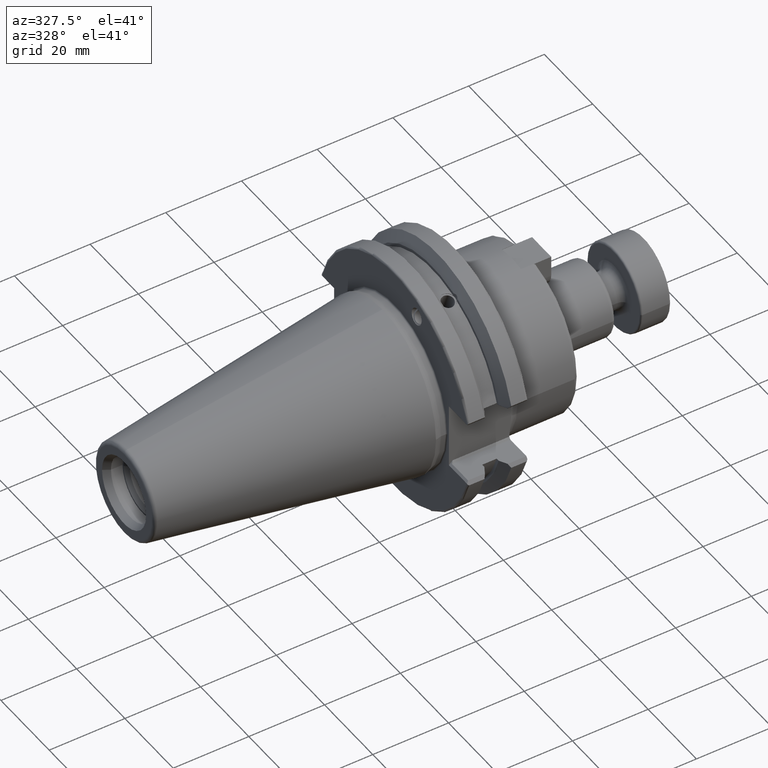
[diagram: clean part render]
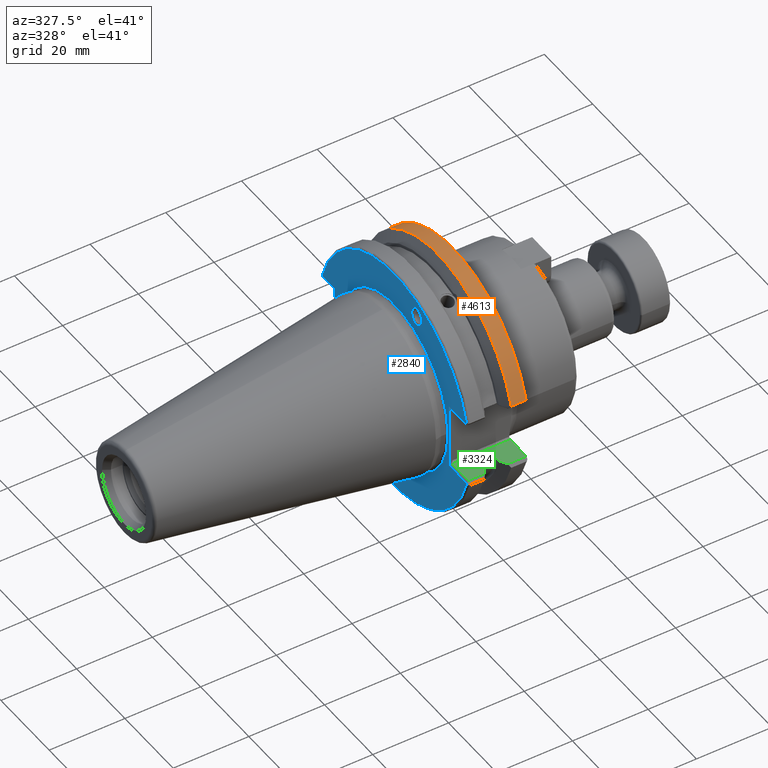
[diagram: same view with three faces highlighted in distinct colors, each labeled with its STEP entity id]
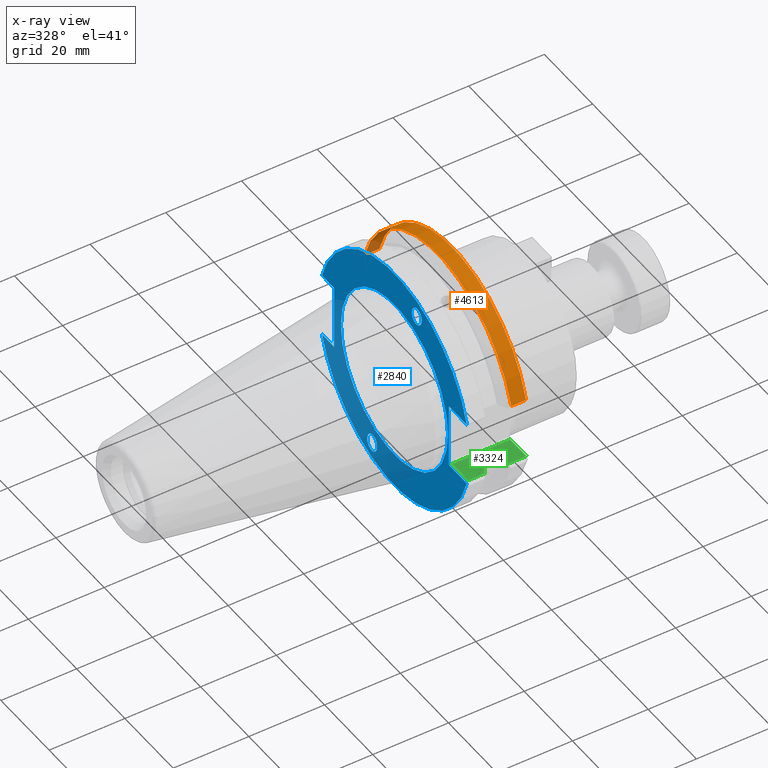
[diagram: x-ray of the same camera — body ghosted, the three highlighted faces saturated]
A machine part, auxiliary view with three faces highlighted in distinct colors.
The next image is the same camera in x-ray (body ghosted, the three faces saturated) — at least one of them is partly hidden behind the body in this view.
Their STEP definitions:

[orange] entity #4613 — the highlighted cylindrical surface (partial cylindrical patch) has radius 31.75 mm, axis along (1, 0, 0).
#1479=CARTESIAN_POINT('',(5.771735840551E-1,1.197670401482E0,
3.578904991948E-1));
#1485=CARTESIAN_POINT('',(5.771735840551E-1,0.E0,0.E0));
#1486=DIRECTION('',(1.E0,0.E0,0.E0));
#1487=DIRECTION('',(0.E0,9.581363211856E-1,2.863123993559E-1));
#1488=AXIS2_PLACEMENT_3D('',#1485,#1486,#1487);
#1494=CARTESIAN_POINT('',(5.771735840551E-1,-1.197670401482E0,
3.578904991948E-1));
#1653=DIRECTION('',(1.E0,0.E0,0.E0));
#1654=VECTOR('',#1653,1.541256285433E-1);
#1655=CARTESIAN_POINT('',(5.771735840551E-1,-1.197670401482E0,
3.578904991948E-1));
#1656=LINE('',#1655,#1654);
#1657=DIRECTION('',(-1.E0,0.E0,0.E0));
#1658=VECTOR('',#1657,1.541256285433E-1);
#1659=CARTESIAN_POINT('',(7.312992125984E-1,1.197670401482E0,
3.578904991948E-1));
#1660=LINE('',#1659,#1658);
#1762=CARTESIAN_POINT('',(7.312992125984E-1,0.E0,0.E0));
#1763=DIRECTION('',(-1.E0,0.E0,0.E0));
#1764=DIRECTION('',(0.E0,-9.581363211856E-1,2.863123993559E-1));
#1765=AXIS2_PLACEMENT_3D('',#1762,#1763,#1764);
#2226=VERTEX_POINT('',#1479);
#2237=VERTEX_POINT('',#1494);
#2290=CARTESIAN_POINT('',(7.312992125984E-1,1.197670401482E0,
3.578904991948E-1));
#2291=VERTEX_POINT('',#2290);
#2294=CARTESIAN_POINT('',(7.312992125984E-1,-1.197670401482E0,
3.578904991948E-1));
#2295=VERTEX_POINT('',#2294);
#4601=CARTESIAN_POINT('',(0.E0,0.E0,0.E0));
#4602=DIRECTION('',(1.E0,0.E0,0.E0));
#4603=DIRECTION('',(0.E0,0.E0,1.E0));
#4604=AXIS2_PLACEMENT_3D('',#4601,#4602,#4603);
#4605=CYLINDRICAL_SURFACE('',#4604,1.25E0);
#4607=ORIENTED_EDGE('',*,*,#4606,.F.);
#4608=ORIENTED_EDGE('',*,*,#4333,.F.);
#4609=ORIENTED_EDGE('',*,*,#4374,.F.);
#4610=ORIENTED_EDGE('',*,*,#4302,.F.);
#4611=EDGE_LOOP('',(#4607,#4608,#4609,#4610));
#4612=FACE_OUTER_BOUND('',#4611,.F.);
#4613=ADVANCED_FACE('',(#4612),#4605,.T.);
#1489=CIRCLE('',#1488,1.25E0);
#1766=CIRCLE('',#1765,1.25E0);
#4302=EDGE_CURVE('',#2291,#2226,#1660,.T.);
#4333=EDGE_CURVE('',#2237,#2295,#1656,.T.);
#4374=EDGE_CURVE('',#2226,#2237,#1489,.T.);
#4606=EDGE_CURVE('',#2295,#2291,#1766,.T.);

[blue] entity #2840 — the highlighted planar face has unit normal (1, 0, 0).
#116=CARTESIAN_POINT('',(1.25E-1,0.E0,0.E0));
#117=DIRECTION('',(1.E0,0.E0,0.E0));
#118=DIRECTION('',(0.E0,1.E0,0.E0));
#119=AXIS2_PLACEMENT_3D('',#116,#117,#118);
#121=CARTESIAN_POINT('',(1.25E-1,0.E0,0.E0));
#122=DIRECTION('',(1.E0,0.E0,0.E0));
#123=DIRECTION('',(0.E0,-1.E0,0.E0));
#124=AXIS2_PLACEMENT_3D('',#121,#122,#123);
#126=CARTESIAN_POINT('',(1.25E-1,3.739298246450E-1,-1.093142051325E0));
#127=CARTESIAN_POINT('',(1.25E-1,3.644663224218E-1,-1.093142051325E0));
#128=CARTESIAN_POINT('',(1.25E-1,3.435773970481E-1,-1.089097688269E0));
#129=CARTESIAN_POINT('',(1.25E-1,3.126429753245E-1,-1.067589996681E0));
#130=CARTESIAN_POINT('',(1.25E-1,2.905283550519E-1,-1.033752631611E0));
#131=CARTESIAN_POINT('',(1.25E-1,2.815492863552E-1,-9.988858567409E-1));
#132=CARTESIAN_POINT('',(1.25E-1,2.828599403287E-1,-9.640190818709E-1));
#133=CARTESIAN_POINT('',(1.25E-1,2.975325488447E-1,-9.301817168011E-1));
#134=CARTESIAN_POINT('',(1.25E-1,3.237366822222E-1,-9.086740252131E-1));
#135=CARTESIAN_POINT('',(1.25E-1,3.437361116982E-1,-9.046296621564E-1));
#136=CARTESIAN_POINT('',(1.25E-1,3.531996139214E-1,-9.046296621564E-1));
#138=CARTESIAN_POINT('',(1.25E-1,3.531996139214E-1,-9.046296621564E-1));
#139=CARTESIAN_POINT('',(1.25E-1,3.626631161446E-1,-9.046296621564E-1));
#140=CARTESIAN_POINT('',(1.25E-1,3.835520415183E-1,-9.086740252131E-1));
#141=CARTESIAN_POINT('',(1.25E-1,4.144864632419E-1,-9.301817168011E-1));
#142=CARTESIAN_POINT('',(1.25E-1,4.366010835145E-1,-9.640190818709E-1));
#143=CARTESIAN_POINT('',(1.25E-1,4.455801522112E-1,-9.988858567409E-1));
#144=CARTESIAN_POINT('',(1.25E-1,4.442694982377E-1,-1.033752631611E0));
#145=CARTESIAN_POINT('',(1.25E-1,4.295968897217E-1,-1.067589996681E0));
#146=CARTESIAN_POINT('',(1.25E-1,4.033927563442E-1,-1.089097688269E0));
#147=CARTESIAN_POINT('',(1.25E-1,3.833933268682E-1,-1.093142051325E0));
#148=CARTESIAN_POINT('',(1.25E-1,3.739298246450E-1,-1.093142051325E0));
#150=CARTESIAN_POINT('',(1.25E-1,-3.739298246450E-1,1.093142051325E0));
#151=CARTESIAN_POINT('',(1.25E-1,-3.644663224218E-1,1.093142051325E0));
#152=CARTESIAN_POINT('',(1.25E-1,-3.435773970481E-1,1.089097688269E0));
#153=CARTESIAN_POINT('',(1.25E-1,-3.126429753245E-1,1.067589996681E0));
#154=CARTESIAN_POINT('',(1.25E-1,-2.905283550519E-1,1.033752631611E0));
#155=CARTESIAN_POINT('',(1.25E-1,-2.815492863552E-1,9.988858567409E-1));
#156=CARTESIAN_POINT('',(1.25E-1,-2.828599403287E-1,9.640190818709E-1));
#157=CARTESIAN_POINT('',(1.25E-1,-2.975325488447E-1,9.301817168011E-1));
#158=CARTESIAN_POINT('',(1.25E-1,-3.237366822222E-1,9.086740252131E-1));
#159=CARTESIAN_POINT('',(1.25E-1,-3.437361116982E-1,9.046296621564E-1));
#160=CARTESIAN_POINT('',(1.25E-1,-3.531996139214E-1,9.046296621564E-1));
#162=CARTESIAN_POINT('',(1.25E-1,-3.531996139214E-1,9.046296621564E-1));
#163=CARTESIAN_POINT('',(1.25E-1,-3.626631161446E-1,9.046296621564E-1));
#164=CARTESIAN_POINT('',(1.25E-1,-3.835520415183E-1,9.086740252131E-1));
#165=CARTESIAN_POINT('',(1.25E-1,-4.144864632419E-1,9.301817168011E-1));
#166=CARTESIAN_POINT('',(1.25E-1,-4.366010835145E-1,9.640190818709E-1));
#167=CARTESIAN_POINT('',(1.25E-1,-4.455801522112E-1,9.988858567409E-1));
#168=CARTESIAN_POINT('',(1.25E-1,-4.442694982377E-1,1.033752631611E0));
#169=CARTESIAN_POINT('',(1.25E-1,-4.295968897217E-1,1.067589996681E0));
#170=CARTESIAN_POINT('',(1.25E-1,-4.033927563442E-1,1.089097688269E0));
#171=CARTESIAN_POINT('',(1.25E-1,-3.833933268682E-1,1.093142051325E0));
#172=CARTESIAN_POINT('',(1.25E-1,-3.739298246450E-1,1.093142051325E0));
#174=DIRECTION('',(-4.416490718152E-7,-9.999999999998E-1,-4.416327431930E-7));
#175=VECTOR('',#174,1.975367644155E-1);
#176=CARTESIAN_POINT('',(1.250000872419E-1,1.181788732919E0,3.421260714907E-1));
#177=LINE('',#176,#175);
#178=DIRECTION('',(2.987481981905E-7,-9.999999999999E-1,2.987371532708E-7));
#179=VECTOR('',#178,2.920249533952E-1);
#180=CARTESIAN_POINT('',(1.25E-1,-8.897637795276E-1,3.421259842520E-1));
#181=LINE('',#180,#179);
#182=DIRECTION('',(-2.987481980955E-7,9.999999999999E-1,2.987371530807E-7));
#183=VECTOR('',#182,2.920249533952E-1);
#184=CARTESIAN_POINT('',(1.250000872419E-1,-1.181788732923E0,
-3.421260714907E-1));
#185=LINE('',#184,#183);
#186=DIRECTION('',(4.416490719577E-7,9.999999999998E-1,-4.416327434760E-7));
#187=VECTOR('',#186,1.975367644147E-1);
#188=CARTESIAN_POINT('',(1.25E-1,9.842519685039E-1,-3.421259842520E-1));
#189=LINE('',#188,#187);
#1186=DIRECTION('',(0.E0,0.E0,1.E0));
#1187=VECTOR('',#1186,6.842519685039E-1);
#1188=CARTESIAN_POINT('',(1.25E-1,-8.897637795276E-1,-3.421259842520E-1));
#1189=LINE('',#1188,#1187);
#1254=CARTESIAN_POINT('',(1.25E-1,0.E0,0.E0));
#1255=DIRECTION('',(-1.E0,0.E0,0.E0));
#1256=DIRECTION('',(0.E0,-9.605579196529E-1,2.780799938725E-1));
#1257=AXIS2_PLACEMENT_3D('',#1254,#1255,#1256);
#1296=DIRECTION('',(0.E0,0.E0,-1.E0));
#1297=VECTOR('',#1296,6.842519685039E-1);
#1298=CARTESIAN_POINT('',(1.25E-1,9.842519685039E-1,3.421259842520E-1));
#1299=LINE('',#1298,#1297);
#1595=CARTESIAN_POINT('',(1.25E-1,0.E0,0.E0));
#1596=DIRECTION('',(-1.E0,0.E0,0.E0));
#1597=DIRECTION('',(0.E0,9.605579196518E-1,-2.780799938762E-1));
#1598=AXIS2_PLACEMENT_3D('',#1595,#1596,#1597);
#2266=CARTESIAN_POINT('',(1.25E-1,8.740157480315E-1,0.E0));
#2267=CARTESIAN_POINT('',(1.25E-1,-8.740157480315E-1,0.E0));
#2268=VERTEX_POINT('',#2266);
#2269=VERTEX_POINT('',#2267);
#2332=VERTEX_POINT('',#126);
#2333=VERTEX_POINT('',#136);
#2366=CARTESIAN_POINT('',(1.250000872419E-1,1.181788732919E0,
3.421260714907E-1));
#2367=CARTESIAN_POINT('',(1.25E-1,9.842519685039E-1,3.421259842520E-1));
#2368=VERTEX_POINT('',#2366);
#2369=VERTEX_POINT('',#2367);
#2374=CARTESIAN_POINT('',(1.25E-1,9.842519685039E-1,-3.421259842520E-1));
#2375=CARTESIAN_POINT('',(1.250000872419E-1,1.181788732919E0,
-3.421260714907E-1));
#2376=VERTEX_POINT('',#2374);
#2377=VERTEX_POINT('',#2375);
#2382=CARTESIAN_POINT('',(1.25E-1,-8.897637795276E-1,3.421259842520E-1));
#2383=CARTESIAN_POINT('',(1.250000872419E-1,-1.181788732923E0,
3.421260714907E-1));
#2384=VERTEX_POINT('',#2382);
#2385=VERTEX_POINT('',#2383);
#2390=CARTESIAN_POINT('',(1.250000872419E-1,-1.181788732923E0,
-3.421260714907E-1));
#2391=CARTESIAN_POINT('',(1.25E-1,-8.897637795276E-1,-3.421259842520E-1));
#2392=VERTEX_POINT('',#2390);
#2393=VERTEX_POINT('',#2391);
#2428=CARTESIAN_POINT('',(1.25E-1,-3.739298246450E-1,1.093142051325E0));
#2429=VERTEX_POINT('',#2428);
#2430=CARTESIAN_POINT('',(1.25E-1,-3.531996139214E-1,9.046296621564E-1));
#2431=VERTEX_POINT('',#2430);
#2801=CARTESIAN_POINT('',(1.25E-1,0.E0,0.E0));
#2802=DIRECTION('',(1.E0,0.E0,0.E0));
#2803=DIRECTION('',(0.E0,0.E0,1.E0));
#2804=AXIS2_PLACEMENT_3D('',#2801,#2802,#2803);
#2805=PLANE('',#2804);
#2807=ORIENTED_EDGE('',*,*,#2806,.F.);
#2809=ORIENTED_EDGE('',*,*,#2808,.F.);
#2811=ORIENTED_EDGE('',*,*,#2810,.F.);
#2813=ORIENTED_EDGE('',*,*,#2812,.F.);
#2815=ORIENTED_EDGE('',*,*,#2814,.F.);
#2817=ORIENTED_EDGE('',*,*,#2816,.F.);
#2819=ORIENTED_EDGE('',*,*,#2818,.F.);
#2821=ORIENTED_EDGE('',*,*,#2820,.F.);
#2822=EDGE_LOOP('',(#2807,#2809,#2811,#2813,#2815,#2817,#2819,#2821));
#2823=FACE_OUTER_BOUND('',#2822,.F.);
#2825=ORIENTED_EDGE('',*,*,#2824,.T.);
#2827=ORIENTED_EDGE('',*,*,#2826,.T.);
#2828=EDGE_LOOP('',(#2825,#2827));
#2829=FACE_BOUND('',#2828,.F.);
#2831=ORIENTED_EDGE('',*,*,#2830,.T.);
#2833=ORIENTED_EDGE('',*,*,#2832,.T.);
#2834=EDGE_LOOP('',(#2831,#2833));
#2835=FACE_BOUND('',#2834,.F.);
#2836=ORIENTED_EDGE('',*,*,#2754,.F.);
#2837=ORIENTED_EDGE('',*,*,#2769,.F.);
#2838=EDGE_LOOP('',(#2836,#2837));
#2839=FACE_BOUND('',#2838,.F.);
#2840=ADVANCED_FACE('',(#2823,#2829,#2835,#2839),#2805,.F.);
#120=CIRCLE('',#119,8.740157480315E-1);
#125=CIRCLE('',#124,8.740157480315E-1);
#137=B_SPLINE_CURVE_WITH_KNOTS('',3,(#126,#127,#128,#129,#130,#131,#132,#133,
#134,#135,#136),.UNSPECIFIED.,.F.,.F.,(4,1,1,1,1,1,1,1,4),(0.E0,1.25E-1,2.5E-1,
3.75E-1,5.E-1,6.25E-1,7.5E-1,8.75E-1,1.E0),.UNSPECIFIED.);
#149=B_SPLINE_CURVE_WITH_KNOTS('',3,(#138,#139,#140,#141,#142,#143,#144,#145,
#146,#147,#148),.UNSPECIFIED.,.F.,.F.,(4,1,1,1,1,1,1,1,4),(0.E0,1.25E-1,2.5E-1,
3.75E-1,5.E-1,6.25E-1,7.5E-1,8.75E-1,1.E0),.UNSPECIFIED.);
#161=B_SPLINE_CURVE_WITH_KNOTS('',3,(#150,#151,#152,#153,#154,#155,#156,#157,
#158,#159,#160),.UNSPECIFIED.,.F.,.F.,(4,1,1,1,1,1,1,1,4),(0.E0,1.25E-1,2.5E-1,
3.75E-1,5.E-1,6.25E-1,7.5E-1,8.75E-1,1.E0),.UNSPECIFIED.);
#173=B_SPLINE_CURVE_WITH_KNOTS('',3,(#162,#163,#164,#165,#166,#167,#168,#169,
#170,#171,#172),.UNSPECIFIED.,.F.,.F.,(4,1,1,1,1,1,1,1,4),(0.E0,1.25E-1,2.5E-1,
3.75E-1,5.E-1,6.25E-1,7.5E-1,8.75E-1,1.E0),.UNSPECIFIED.);
#1258=CIRCLE('',#1257,1.230314960630E0);
#1599=CIRCLE('',#1598,1.230314960630E0);
#2754=EDGE_CURVE('',#2268,#2269,#120,.T.);
#2769=EDGE_CURVE('',#2269,#2268,#125,.T.);
#2806=EDGE_CURVE('',#2368,#2369,#177,.T.);
#2808=EDGE_CURVE('',#2385,#2368,#1258,.T.);
#2810=EDGE_CURVE('',#2384,#2385,#181,.T.);
#2812=EDGE_CURVE('',#2393,#2384,#1189,.T.);
#2814=EDGE_CURVE('',#2392,#2393,#185,.T.);
#2816=EDGE_CURVE('',#2377,#2392,#1599,.T.);
#2818=EDGE_CURVE('',#2376,#2377,#189,.T.);
#2820=EDGE_CURVE('',#2369,#2376,#1299,.T.);
#2824=EDGE_CURVE('',#2332,#2333,#137,.T.);
#2826=EDGE_CURVE('',#2333,#2332,#149,.T.);
#2830=EDGE_CURVE('',#2429,#2431,#161,.T.);
#2832=EDGE_CURVE('',#2431,#2429,#173,.T.);

[green] entity #3324 — the highlighted planar face has unit normal (0, 0, -1).
#459=DIRECTION('',(1.E0,0.E0,0.E0));
#460=VECTOR('',#459,1.51E-1);
#461=CARTESIAN_POINT('',(3.628503937008E-1,-1.060325029686E0,
-3.224409448819E-1));
#462=LINE('',#461,#460);
#580=CARTESIAN_POINT('',(3.198283118296E-1,-1.171265069796E0,
-3.224409448819E-1));
#586=CARTESIAN_POINT('',(3.198283118296E-1,-1.171265069796E0,
-3.224409448819E-1));
#587=CARTESIAN_POINT('',(3.247098189408E-1,-1.162495515263E0,
-3.224409448819E-1));
#588=CARTESIAN_POINT('',(3.344054714592E-1,-1.145063544842E0,
-3.224409448819E-1));
#589=CARTESIAN_POINT('',(3.487461666041E-1,-1.119237158949E0,
-3.224409448819E-1));
#590=CARTESIAN_POINT('',(3.581715758774E-1,-1.102232938016E0,
-3.224409448819E-1));
#591=CARTESIAN_POINT('',(3.628503937008E-1,-1.093784192104E0,
-3.224409448819E-1));
#654=DIRECTION('',(0.E0,1.E0,0.E0));
#655=VECTOR('',#654,3.345916241785E-2);
#656=CARTESIAN_POINT('',(3.628503937008E-1,-1.093784192104E0,
-3.224409448819E-1));
#657=LINE('',#656,#655);
#682=DIRECTION('',(0.E0,1.E0,0.E0));
#683=VECTOR('',#682,2.618162508981E-1);
#684=CARTESIAN_POINT('',(7.509842519685E-1,-1.171265069796E0,
-3.224409448819E-1));
#685=LINE('',#684,#683);
#686=DIRECTION('',(-1.E0,0.E0,0.E0));
#687=VECTOR('',#686,1.941117763965E-1);
#688=CARTESIAN_POINT('',(7.509842519685E-1,-1.171265069796E0,
-3.224409448819E-1));
#689=LINE('',#688,#687);
#690=DIRECTION('',(-1.E0,0.E0,0.E0));
#691=VECTOR('',#690,1.751432724595E-1);
#692=CARTESIAN_POINT('',(3.198283118296E-1,-1.171265069796E0,
-3.224409448819E-1));
#693=LINE('',#692,#691);
#694=DIRECTION('',(0.E0,1.E0,0.E0));
#695=VECTOR('',#694,2.618162508981E-1);
#696=CARTESIAN_POINT('',(1.446850393701E-1,-1.171265069796E0,
-3.224409448819E-1));
#697=LINE('',#696,#695);
#698=DIRECTION('',(1.E0,0.E0,0.E0));
#699=VECTOR('',#698,6.062992125984E-1);
#700=CARTESIAN_POINT('',(1.446850393701E-1,-9.094488188976E-1,
-3.224409448819E-1));
#701=LINE('',#700,#699);
#1419=CARTESIAN_POINT('',(5.568724755720E-1,-1.171265069796E0,
-3.224409448819E-1));
#1420=CARTESIAN_POINT('',(5.519909684608E-1,-1.162495515263E0,
-3.224409448819E-1));
#1421=CARTESIAN_POINT('',(5.422953159423E-1,-1.145063544842E0,
-3.224409448819E-1));
#1422=CARTESIAN_POINT('',(5.279546207974E-1,-1.119237158949E0,
-3.224409448819E-1));
#1423=CARTESIAN_POINT('',(5.185292115242E-1,-1.102232938016E0,
-3.224409448819E-1));
#1424=CARTESIAN_POINT('',(5.138503937008E-1,-1.093784192104E0,
-3.224409448819E-1));
#1430=CARTESIAN_POINT('',(5.568724755720E-1,-1.171265069796E0,
-3.224409448819E-1));
#1533=DIRECTION('',(0.E0,1.E0,0.E0));
#1534=VECTOR('',#1533,3.345916241785E-2);
#1535=CARTESIAN_POINT('',(5.138503937008E-1,-1.093784192104E0,
-3.224409448819E-1));
#1536=LINE('',#1535,#1534);
#2212=CARTESIAN_POINT('',(3.628503937008E-1,-1.093784192104E0,
-3.224409448819E-1));
#2213=CARTESIAN_POINT('',(3.628503937008E-1,-1.060325029686E0,
-3.224409448819E-1));
#2214=VERTEX_POINT('',#2212);
#2215=VERTEX_POINT('',#2213);
#2218=CARTESIAN_POINT('',(5.138503937008E-1,-1.060325029686E0,
-3.224409448819E-1));
#2219=VERTEX_POINT('',#2218);
#2222=CARTESIAN_POINT('',(5.138503937008E-1,-1.093784192104E0,
-3.224409448819E-1));
#2223=VERTEX_POINT('',#2222);
#2232=VERTEX_POINT('',#580);
#2239=VERTEX_POINT('',#1430);
#2386=CARTESIAN_POINT('',(1.446850393701E-1,-1.171265069796E0,
-3.224409448819E-1));
#2388=VERTEX_POINT('',#2386);
#2404=CARTESIAN_POINT('',(1.446850393701E-1,-9.094488188976E-1,
-3.224409448819E-1));
#2405=VERTEX_POINT('',#2404);
#2480=CARTESIAN_POINT('',(7.509842519685E-1,-1.171265069796E0,
-3.224409448819E-1));
#2481=CARTESIAN_POINT('',(7.509842519685E-1,-9.094488188976E-1,
-3.224409448819E-1));
#2482=VERTEX_POINT('',#2480);
#2483=VERTEX_POINT('',#2481);
#3300=CARTESIAN_POINT('',(7.509842519685E-1,-8.897637795276E-1,
-3.224409448819E-1));
#3301=DIRECTION('',(0.E0,0.E0,-1.E0));
#3302=DIRECTION('',(-1.E0,0.E0,0.E0));
#3303=AXIS2_PLACEMENT_3D('',#3300,#3301,#3302);
#3304=PLANE('',#3303);
#3306=ORIENTED_EDGE('',*,*,#3305,.F.);
#3308=ORIENTED_EDGE('',*,*,#3307,.T.);
#3310=ORIENTED_EDGE('',*,*,#3309,.T.);
#3312=ORIENTED_EDGE('',*,*,#3311,.T.);
#3313=ORIENTED_EDGE('',*,*,#3139,.F.);
#3314=ORIENTED_EDGE('',*,*,#3255,.F.);
#3315=ORIENTED_EDGE('',*,*,#3218,.F.);
#3317=ORIENTED_EDGE('',*,*,#3316,.T.);
#3319=ORIENTED_EDGE('',*,*,#3318,.T.);
#3321=ORIENTED_EDGE('',*,*,#3320,.T.);
#3322=EDGE_LOOP('',(#3306,#3308,#3310,#3312,#3313,#3314,#3315,#3317,#3319,
#3321));
#3323=FACE_OUTER_BOUND('',#3322,.F.);
#3324=ADVANCED_FACE('',(#3323),#3304,.F.);
#592=B_SPLINE_CURVE_WITH_KNOTS('',3,(#586,#587,#588,#589,#590,#591),
.UNSPECIFIED.,.F.,.F.,(4,1,1,4),(0.E0,3.333333333333E-1,6.666666666667E-1,1.E0),
.UNSPECIFIED.);
#1425=B_SPLINE_CURVE_WITH_KNOTS('',3,(#1419,#1420,#1421,#1422,#1423,#1424),
.UNSPECIFIED.,.F.,.F.,(4,1,1,4),(0.E0,3.333333333333E-1,6.666666666667E-1,1.E0),
.UNSPECIFIED.);
#3139=EDGE_CURVE('',#2215,#2219,#462,.T.);
#3218=EDGE_CURVE('',#2232,#2214,#592,.T.);
#3255=EDGE_CURVE('',#2214,#2215,#657,.T.);
#3305=EDGE_CURVE('',#2482,#2483,#685,.T.);
#3307=EDGE_CURVE('',#2482,#2239,#689,.T.);
#3309=EDGE_CURVE('',#2239,#2223,#1425,.T.);
#3311=EDGE_CURVE('',#2223,#2219,#1536,.T.);
#3316=EDGE_CURVE('',#2232,#2388,#693,.T.);
#3318=EDGE_CURVE('',#2388,#2405,#697,.T.);
#3320=EDGE_CURVE('',#2405,#2483,#701,.T.);